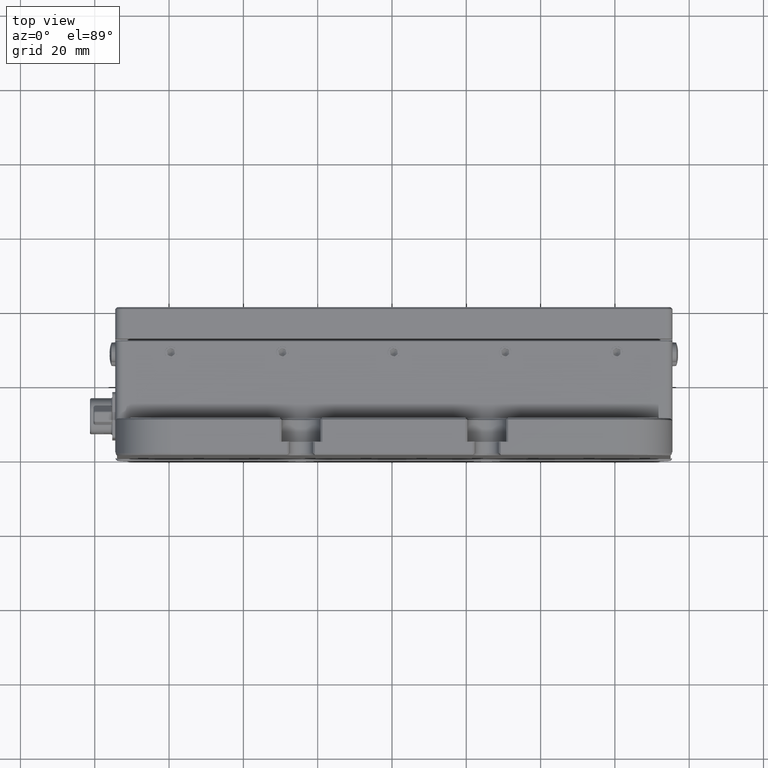
[diagram: clean part render]
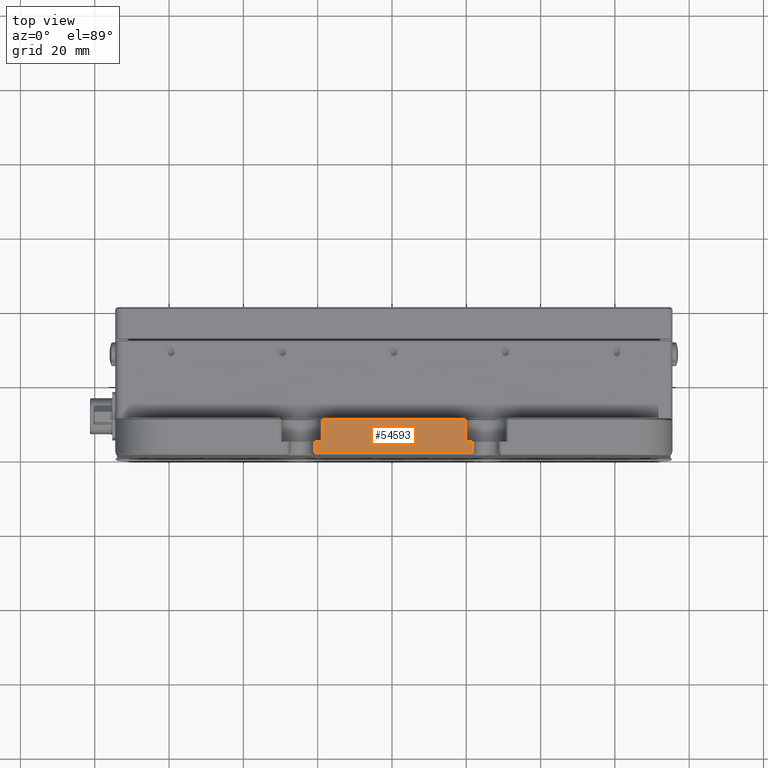
[diagram: same view with one face highlighted and labeled with its STEP entity id]
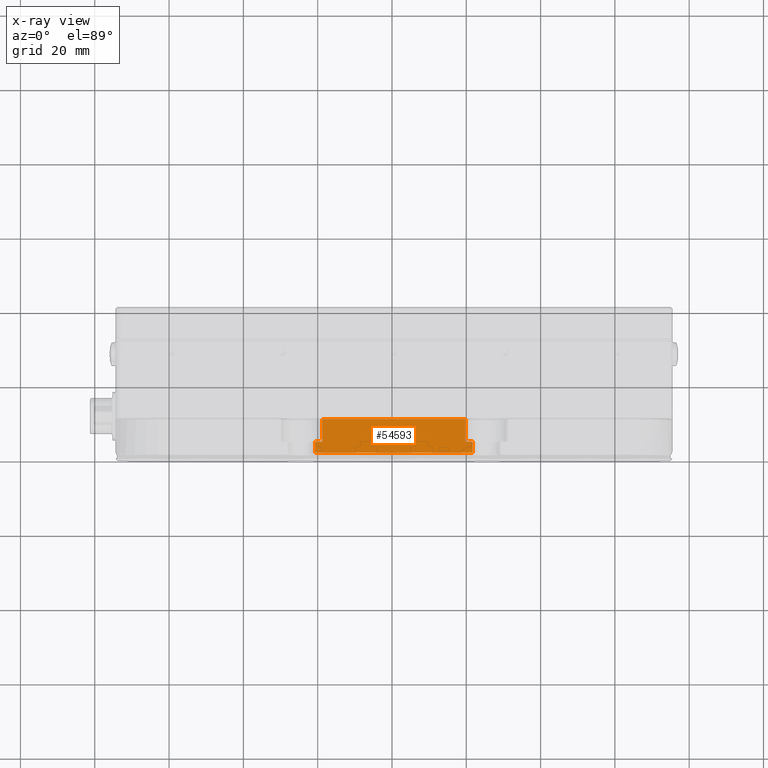
[diagram: x-ray of the same camera — body ghosted, the highlighted face saturated]
A machine part, top view. The second image highlights one B-rep face of the part: STEP entity #54593.
The next image is the same camera in x-ray: the body ghosted, the highlighted face saturated — about 0% of this face is hidden behind the body in this view.
In plain terms, the highlighted planar face has unit normal (0, 0, -1).
Its self-contained STEP definition (entity closure, byte-faithful):
#435 = CARTESIAN_POINT ( 'NONE',  ( 199.2516253540470600, -1.508377782760009900E-014, 104.6178906604377700 ) ) ;
#472 = CARTESIAN_POINT ( 'NONE',  ( 199.2516253540470600, 0.5000000000000269800, 104.6178906604377700 ) ) ;
#894 = EDGE_CURVE ( 'NONE', #55290, #22071, #23977, .T. ) ;
#2591 = VECTOR ( 'NONE', #24727, 1000.000000000000000 ) ;
#2663 = VECTOR ( 'NONE', #27776, 1000.000000000000000 ) ;
#2702 = VERTEX_POINT ( 'NONE', #472 ) ;
#2731 = CARTESIAN_POINT ( 'NONE',  ( 210.5016253540469500, 9.500000000000000000, 104.6178906604377700 ) ) ;
#4144 = DIRECTION ( 'NONE',  ( 0.0000000000000000000, 1.224646799147353200E-016, -1.000000000000000000 ) ) ;
#5389 = CARTESIAN_POINT ( 'NONE',  ( 201.2516253540470100, 9.500000000000001800, 104.6178906604377500 ) ) ;
#5492 = DIRECTION ( 'NONE',  ( 0.0000000000000000000, 1.000000000000000000, 1.224646799147353200E-016 ) ) ;
#8931 = EDGE_CURVE ( 'NONE', #35882, #2702, #61555, .T. ) ;
#9671 = ORIENTED_EDGE ( 'NONE', *, *, #62534, .F. ) ;
#10235 = VECTOR ( 'NONE', #37922, 1000.000000000000000 ) ;
#11954 = CARTESIAN_POINT ( 'NONE',  ( 195.5016253540470400, 3.499999999999985800, 104.6178906604377700 ) ) ;
#12322 = FACE_OUTER_BOUND ( 'NONE', #42740, .T. ) ;
#14177 = ORIENTED_EDGE ( 'NONE', *, *, #54093, .F. ) ;
#14424 = CARTESIAN_POINT ( 'NONE',  ( 210.5016253540469500, -1.508377782760009900E-014, 104.6178906604377700 ) ) ;
#15082 = LINE ( 'NONE', #19522, #2591 ) ;
#15516 = LINE ( 'NONE', #43667, #33408 ) ;
#17347 = CARTESIAN_POINT ( 'NONE',  ( 239.7516253540469500, 3.499999999999987100, 104.6178906604377700 ) ) ;
#18616 = EDGE_CURVE ( 'NONE', #46541, #35882, #56141, .T. ) ;
#18930 = CARTESIAN_POINT ( 'NONE',  ( 241.7516253540469500, 3.499999999999985800, 104.6178906604377700 ) ) ;
#19522 = CARTESIAN_POINT ( 'NONE',  ( 239.7516253540469800, -1.508377782760009900E-014, 104.6178906604377700 ) ) ;
#19633 = PLANE ( 'NONE',  #37099 ) ;
#20521 = ORIENTED_EDGE ( 'NONE', *, *, #18616, .F. ) ;
#22071 = VERTEX_POINT ( 'NONE', #48964 ) ;
#23150 = ORIENTED_EDGE ( 'NONE', *, *, #894, .F. ) ;
#23919 = EDGE_CURVE ( 'NONE', #33958, #59511, #50943, .T. ) ;
#23977 = LINE ( 'NONE', #11954, #34905 ) ;
#24148 = VECTOR ( 'NONE', #61560, 1000.000000000000000 ) ;
#24727 = DIRECTION ( 'NONE',  ( -0.0000000000000000000, -1.000000000000000000, -1.224646799147353200E-016 ) ) ;
#26910 = LINE ( 'NONE', #435, #37828 ) ;
#26975 = VERTEX_POINT ( 'NONE', #17347 ) ;
#27776 = DIRECTION ( 'NONE',  ( 1.000000000000000000, -0.0000000000000000000, 0.0000000000000000000 ) ) ;
#28062 = CARTESIAN_POINT ( 'NONE',  ( 241.7516253540469800, -1.508377782760009900E-014, 104.6178906604377700 ) ) ;
#32847 = CARTESIAN_POINT ( 'NONE',  ( 210.5016253540469500, 0.5000000000000269800, 104.6178906604377700 ) ) ;
#33408 = VECTOR ( 'NONE', #54269, 1000.000000000000000 ) ;
#33958 = VERTEX_POINT ( 'NONE', #5389 ) ;
#34905 = VECTOR ( 'NONE', #56303, 1000.000000000000000 ) ;
#35637 = CARTESIAN_POINT ( 'NONE',  ( 199.2516253540470600, 3.499999999999986200, 104.6178906604377700 ) ) ;
#35882 = VERTEX_POINT ( 'NONE', #62280 ) ;
#37099 = AXIS2_PLACEMENT_3D ( 'NONE', #14424, #4144, #63929 ) ;
#37828 = VECTOR ( 'NONE', #5492, 1000.000000000000000 ) ;
#37922 = DIRECTION ( 'NONE',  ( -0.0000000000000000000, -1.000000000000000000, -1.224646799147353200E-016 ) ) ;
#38968 = LINE ( 'NONE', #56401, #24148 ) ;
#42000 = ORIENTED_EDGE ( 'NONE', *, *, #23919, .F. ) ;
#42198 = VECTOR ( 'NONE', #53283, 1000.000000000000000 ) ;
#42740 = EDGE_LOOP ( 'NONE', ( #46289, #47616, #20521, #14177, #56893, #42000, #9671, #23150 ) ) ;
#43667 = CARTESIAN_POINT ( 'NONE',  ( 245.5016253540470100, 3.499999999999985800, 104.6178906604377700 ) ) ;
#46289 = ORIENTED_EDGE ( 'NONE', *, *, #56139, .F. ) ;
#46541 = VERTEX_POINT ( 'NONE', #18930 ) ;
#47412 = CARTESIAN_POINT ( 'NONE',  ( 239.7516253540469800, 9.500000000000001800, 104.6178906604377700 ) ) ;
#47616 = ORIENTED_EDGE ( 'NONE', *, *, #8931, .F. ) ;
#48964 = CARTESIAN_POINT ( 'NONE',  ( 201.2516253540469800, 3.499999999999986200, 104.6178906604377700 ) ) ;
#50943 = LINE ( 'NONE', #2731, #2663 ) ;
#53283 = DIRECTION ( 'NONE',  ( -1.000000000000000000, -0.0000000000000000000, -0.0000000000000000000 ) ) ;
#54093 = EDGE_CURVE ( 'NONE', #26975, #46541, #15516, .T. ) ;
#54269 = DIRECTION ( 'NONE',  ( 1.000000000000000000, 0.0000000000000000000, 0.0000000000000000000 ) ) ;
#54593 = ADVANCED_FACE ( 'NONE', ( #12322 ), #19633, .F. ) ;
#55290 = VERTEX_POINT ( 'NONE', #35637 ) ;
#56139 = EDGE_CURVE ( 'NONE', #2702, #55290, #26910, .T. ) ;
#56141 = LINE ( 'NONE', #28062, #10235 ) ;
#56303 = DIRECTION ( 'NONE',  ( 1.000000000000000000, 0.0000000000000000000, 0.0000000000000000000 ) ) ;
#56401 = CARTESIAN_POINT ( 'NONE',  ( 201.2516253540470100, -1.508377782760009900E-014, 104.6178906604377700 ) ) ;
#56893 = ORIENTED_EDGE ( 'NONE', *, *, #57257, .F. ) ;
#57257 = EDGE_CURVE ( 'NONE', #59511, #26975, #15082, .T. ) ;
#59511 = VERTEX_POINT ( 'NONE', #47412 ) ;
#61555 = LINE ( 'NONE', #32847, #42198 ) ;
#61560 = DIRECTION ( 'NONE',  ( 0.0000000000000000000, 1.000000000000000000, 1.224646799147353200E-016 ) ) ;
#62280 = CARTESIAN_POINT ( 'NONE',  ( 241.7516253540469800, 0.5000000000000288700, 104.6178906604377700 ) ) ;
#62534 = EDGE_CURVE ( 'NONE', #22071, #33958, #38968, .T. ) ;
#63929 = DIRECTION ( 'NONE',  ( 0.0000000000000000000, 1.000000000000000000, 1.224646799147353200E-016 ) ) ;